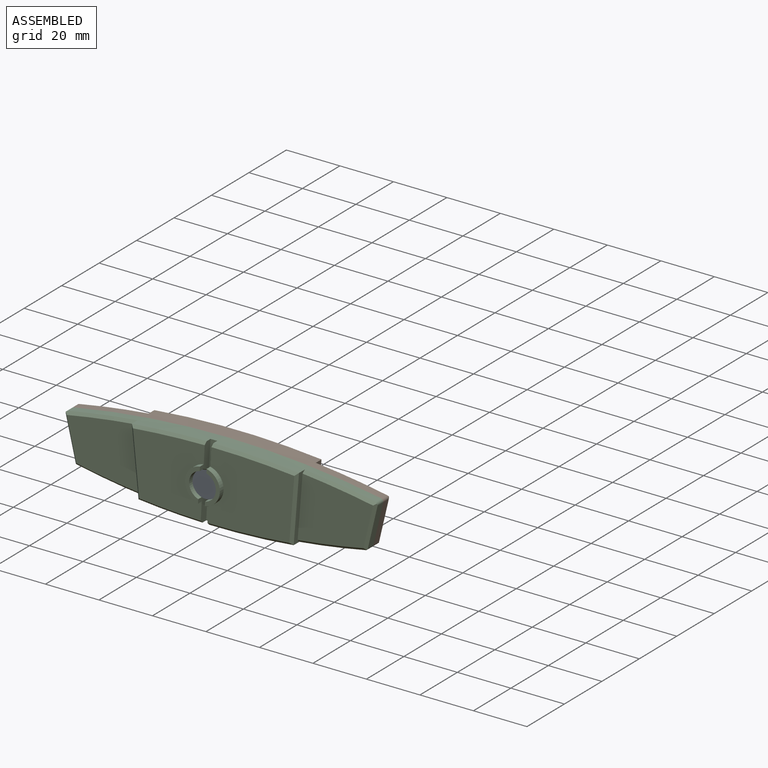
[diagram: assembled view]
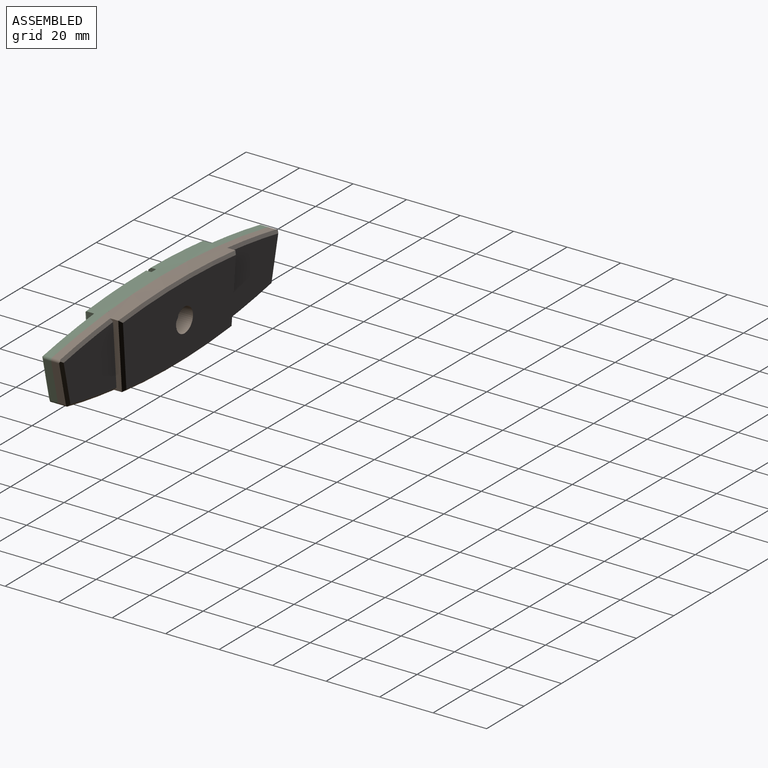
[diagram: assembled view, second angle]
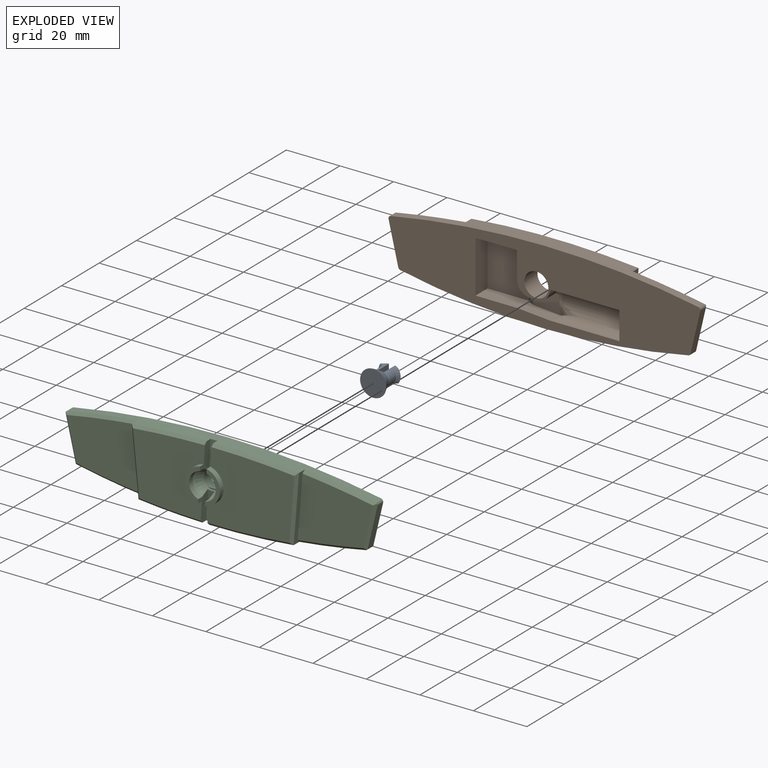
[diagram: exploded view]
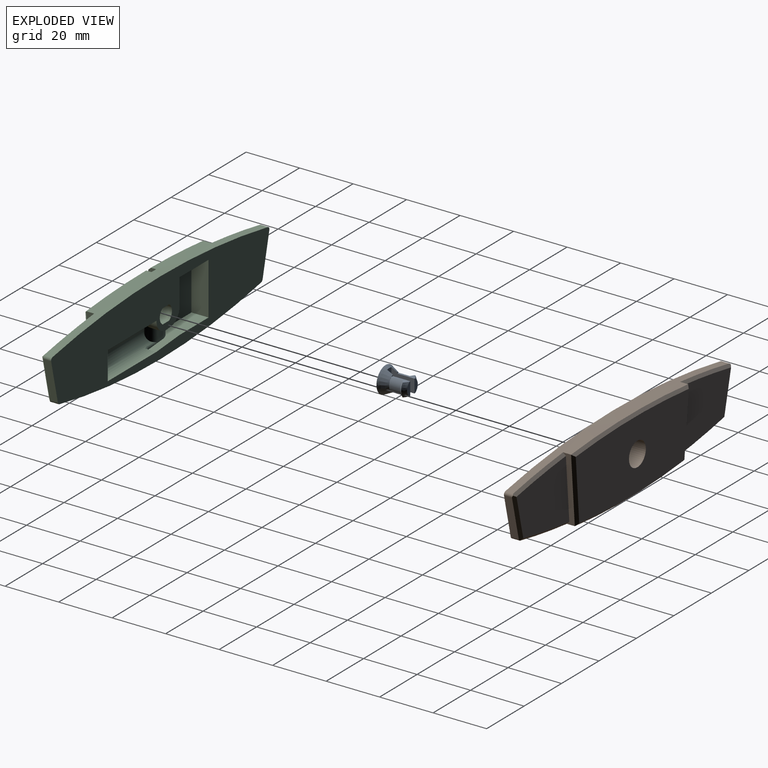
[diagram: exploded view, second angle]
ASSEMBLY  parts=3 mates=2
PART A: 19 faces, bbox 10x10x10.2 mm
  f0: plane 5x1.75mm, normal (0,0,-1), area 6.6mm2, adj f1,f2,f14,f17
  f1: plane 6.68x2.39mm, normal (0,1,0), area 6.6mm2, adj f0,f3,f7,f14,f15,f17
  f2: plane 6.68x2.39mm, normal (0,-1,0), area 6.6mm2, adj f0,f3,f7,f14,f15,f17
  f3: plane 5.94x2.05mm, normal (0,0,-1), area 0.6mm2, adj f1,f2,f7,f10,f17
  f4: plane 6.68x2.39mm, normal (0,1,0), area 6.6mm2, adj f5,f8,f11,f12,f13,f16
  f5: cylinder r=3.15mm len=5mm, axis (0,0,1), area 24.1mm2, adj f4,f6,f8,f13
  f6: plane 6.68x2.39mm, normal (0,-1,0), area 6.6mm2, adj f5,f8,f11,f12,f13,f16
  f7: cylinder r=3.15mm len=5mm, axis (0,0,1), area 24.1mm2, adj f1,f2,f3,f15
  f8: plane 5.94x2.05mm, normal (0,0,-1), area 0.6mm2, adj f4,f5,f6,f10,f16
  f9: plane 9.8x9.8mm, normal (0,0,1), area 75.4mm2, adj f10
  f10: cone r=4.92mm half-angle=26.2deg, axis (0,0,1), area 87.9mm2, adj f3,f8,f9,f16,f17,f18
  f11: plane 5x1.75mm, normal (0,0,-1), area 6.6mm2, adj f4,f6,f12,f16
  f12: cone r=2.88mm half-angle=45deg, axis (0,0,1), area 10.3mm2, adj f4,f6,f11,f13
  f13: cone r=4.17mm half-angle=45deg, axis (0,0,-1), area 8.2mm2, adj f4,f5,f6,f12
  f14: cone r=2.88mm half-angle=45deg, axis (0,0,1), area 10.3mm2, adj f0,f1,f2,f15
  f15: cone r=4.17mm half-angle=45deg, axis (0,0,-1), area 8.2mm2, adj f1,f2,f7,f14
  f16: plane 8.7x8.22mm, normal (1,0,0), area 47.7mm2, adj f4,f6,f8,f10,f11,f18
  f17: plane 8.7x8.22mm, normal (-1,0,0), area 47.7mm2, adj f0,f1,f2,f3,f10,f18
  f18: plane 8.47x2.25mm, normal (0,0,-1), area 18.8mm2, adj f10,f16,f17
PART B: 44 faces, bbox 116.7x9.6x28.1 mm
  f0: plane 0.83x0.07mm, normal (1,0,0), area 0mm2, adj f5,f19,f43
  f1: cylinder r=272.77mm len=107.74mm, axis (0,-1,0), area 499.7mm2, adj f5,f6,f9,f11,f14,f17,f21,f31
  f2: plane 15.36x3.61mm, normal (0.97,0,-0.23), area 47.3mm2, adj f5,f7,f9,f10
  f3: cylinder r=313.86mm len=114.94mm, axis (0,-1,0), area 534.6mm2, adj f5,f8,f10,f11,f16,f18,f21,f30
  f4: plane 28.19x22.91mm, normal (0,1,0), area 497mm2, adj f6,f7,f8,f11
  f5: plane 116.57x28mm, normal (0,-1,0), area 2039.2mm2, adj f0,f1,f2,f3,f9,f10,f12,f17
  f6: cone r=271.77mm half-angle=45deg, axis (0,-1,0), area 35.8mm2, adj f1,f4,f7,f9,f11
  f7: plane 16.77x4.76mm, normal (0.69,0.71,-0.16), area 23.3mm2, adj f2,f4,f6,f8,f9,f10
  f8: cone r=312.86mm half-angle=45deg, axis (0,-1,0), area 38.3mm2, adj f3,f4,f7,f10,f11
  f9: cylinder r=1mm len=3.16mm, axis (0,-1,0), area 3.5mm2, adj f1,f2,f5,f6,f7
  f10: cylinder r=1mm len=3.31mm, axis (0,-1,0), area 5.1mm2, adj f2,f3,f5,f7,f8
  f11: plane 24.92x3mm, normal (1,0,-0.08), area 51mm2, adj f1,f3,f4,f6,f8,f32
  f12: plane 15.36x3.61mm, normal (-0.97,0,-0.23), area 47.3mm2, adj f5,f15,f17,f18
  f13: plane 28.2x22.86mm, normal (0,1,0), area 491.6mm2, adj f14,f15,f16,f21
  f14: cone r=271.77mm half-angle=45deg, axis (0,-1,0), area 35.8mm2, adj f1,f13,f15,f17,f21
  f15: plane 16.77x4.76mm, normal (-0.69,0.71,-0.16), area 23.3mm2, adj f12,f13,f14,f16,f17,f18
  f16: cone r=312.86mm half-angle=45deg, axis (0,-1,0), area 37.6mm2, adj f3,f13,f15,f18,f21
  f17: cylinder r=1mm len=3.16mm, axis (0,-1,0), area 3.5mm2, adj f1,f5,f12,f14,f15
  f18: cylinder r=1mm len=3.31mm, axis (0,-1,0), area 5.1mm2, adj f3,f5,f12,f15,f16
  f19: cylinder r=5.25mm len=27.51mm, axis (-1,0,0), area 402.8mm2, adj f0,f5,f20,f28,f33,f39,f40,f43
  f20: plane 3.85x0.25mm, normal (1,0,0), area 0.6mm2, adj f19,f33,f40
  f21: plane 24.87x3mm, normal (-0.99,0,-0.1), area 51mm2, adj f1,f3,f13,f14,f16,f29
  f22: plane 60.33x26mm, normal (0,1,0), area 1394.2mm2, adj f29,f30,f31,f32,f38
  f23: plane 19.5x15.5mm, normal (0,-1,0), area 302.2mm2, adj f24,f25,f26,f27,f41
  f24: plane 15.5x6.4mm, normal (0,0,1), area 99.2mm2, adj f5,f23,f25,f35
  f25: plane 19.5x6.4mm, normal (1,0,0), area 124.8mm2, adj f5,f23,f24,f26
  f26: plane 15.5x6.4mm, normal (0,0,-1), area 99.2mm2, adj f5,f23,f25,f27
  f27: plane 9.87x6.4mm, normal (-1,0,0), area 63.2mm2, adj f5,f23,f26,f42
  f28: plane 10.5x5.25mm, normal (-1,0,0), area 43.3mm2, adj f5,f19
  f29: plane 24.87x3.42mm, normal (-0.7,0.71,-0.07), area 34.1mm2, adj f21,f22,f30,f31
  f30: cone r=312.86mm half-angle=45deg, axis (0,-1,0), area 87mm2, adj f3,f22,f29,f32
  f31: cone r=271.77mm half-angle=45deg, axis (0,-1,0), area 80.9mm2, adj f1,f22,f29,f32
  f32: plane 24.92x2.92mm, normal (0.7,0.71,-0.06), area 34.1mm2, adj f11,f22,f30,f31
  f33: plane 8.83x6.85mm, normal (0,-1,0), area 49.1mm2, adj f19,f20,f34,f35,f37,f41,f42,f43
  f34: plane 5x2.3mm, normal (-0.08,0,-1), area 11.5mm2, adj f5,f33,f42,f43
  f35: plane 12.32x6.42mm, normal (0.08,0,1), area 63.2mm2, adj f5,f24,f33,f36,f41
  f36: cone r=2.95mm half-angle=36.1deg, axis (0,0.81,0.59), area 2.9mm2, adj f35,f37,f39
  f37: cone r=2.95mm half-angle=53.9deg, axis (0,-0.81,-0.59), area 2.6mm2, adj f33,f36,f39,f40
  f38: cylinder r=4.5mm len=9mm, axis (0,-1,0), area 197.9mm2, adj f5,f22
  f39: bspline ~9.43x9.17mm, area 14.6mm2, adj f19,f36,f37,f40
  f40: bspline ~9.12x7.2mm, area 13.3mm2, adj f19,f20,f37,f39
  f41: cylinder r=5mm len=9.91mm, axis (0,0,-1), area 28.3mm2, adj f23,f33,f35,f42
  f42: cylinder r=5mm len=6.4mm, axis (0,1,0), area 41.7mm2, adj f5,f27,f33,f34,f41
  f43: cylinder r=5mm len=5.4mm, axis (0,1,0), area 36.5mm2, adj f0,f5,f19,f33,f34
PART C: 69 faces, bbox 116.7x9.1x28.1 mm
  f0: cylinder r=272.77mm len=107.74mm, axis (0,1,0), area 494.7mm2, adj f4,f5,f8,f12,f15,f17,f26,f36
  f1: plane 15.36x3.61mm, normal (0.97,0,-0.23), area 47.3mm2, adj f4,f6,f8,f9
  f2: cylinder r=313.86mm len=114.94mm, axis (0,1,0), area 529.6mm2, adj f4,f7,f9,f14,f16,f17,f26,f39
  f3: plane 28.19x22.91mm, normal (0,-1,0), area 497mm2, adj f5,f6,f7,f26
  f4: plane 116.57x28mm, normal (0,1,0), area 2071.9mm2, adj f0,f1,f2,f8,f9,f10,f15,f16
  f5: cone r=271.77mm half-angle=45deg, axis (0,1,0), area 35.8mm2, adj f0,f3,f6,f8,f26
  f6: plane 16.77x4.76mm, normal (0.69,-0.71,-0.16), area 23.3mm2, adj f1,f3,f5,f7,f8,f9
  f7: cone r=312.86mm half-angle=45deg, axis (0,1,0), area 38.3mm2, adj f2,f3,f6,f9,f26
  f8: cylinder r=1mm len=3.16mm, axis (0,1,0), area 3.5mm2, adj f0,f1,f4,f5,f6
  f9: cylinder r=1mm len=3.31mm, axis (0,1,0), area 5.1mm2, adj f1,f2,f4,f6,f7
  f10: plane 15.36x3.61mm, normal (-0.97,0,-0.23), area 47.3mm2, adj f4,f13,f15,f16
  f11: plane 28.2x22.86mm, normal (0,-1,0), area 491.6mm2, adj f12,f13,f14,f17
  f12: cone r=271.77mm half-angle=45deg, axis (0,1,0), area 35.8mm2, adj f0,f11,f13,f15,f17
  f13: plane 16.77x4.76mm, normal (-0.69,-0.71,-0.16), area 23.3mm2, adj f10,f11,f12,f14,f15,f16
  f14: cone r=312.86mm half-angle=45deg, axis (0,1,0), area 37.6mm2, adj f2,f11,f13,f16,f17
  f15: cylinder r=1mm len=3.16mm, axis (0,1,0), area 3.5mm2, adj f0,f4,f10,f12,f13
  f16: cylinder r=1mm len=3.31mm, axis (0,1,0), area 5.1mm2, adj f2,f4,f10,f13,f14
  f17: plane 24.87x3mm, normal (-0.99,0,-0.1), area 51mm2, adj f0,f2,f11,f12,f14,f55
  f18: cylinder r=5.25mm len=29.14mm, axis (-1,0,0), area 401.1mm2, adj f4,f19,f47,f48,f49,f62,f64,f65
  f19: plane 0.83x0.07mm, normal (1,0,0), area 0mm2, adj f4,f18,f67
  f20: plane 32.47x26mm, normal (0,-1,0), area 722.1mm2, adj f23,f37,f40,f51,f52,f53
  f21: cone r=5mm half-angle=26.6deg, axis (0,-1,0), area 84mm2, adj f22,f25,f28,f29,f32,f33,f36,f37
  f22: cylinder r=5mm len=9.69mm, axis (0,1,0), area 26.6mm2, adj f21,f24,f37,f40
  f23: cylinder r=6.5mm len=12.76mm, axis (0,1,0), area 36mm2, adj f20,f24,f37,f40
  f24: plane 12.76x5.66mm, normal (0,-1,0), area 23.5mm2, adj f22,f23,f37,f40
  f25: plane 3.46x0.5mm, normal (0,-1,0), area 1.2mm2, adj f21,f31
  f26: plane 24.92x3mm, normal (1,0,-0.08), area 51mm2, adj f0,f2,f3,f5,f7,f53
  f27: plane 26.84x25.93mm, normal (0,-1,0), area 570.3mm2, adj f34,f36,f41,f54,f55,f56
  f28: plane 3.46x0.5mm, normal (0,-1,0), area 1.2mm2, adj f21,f30
  f29: cylinder r=3.25mm len=5.5mm, axis (0,-1,0), area 22.9mm2, adj f4,f21,f30,f31
  f30: plane 3.5x3.46mm, normal (0,0,-1), area 12.1mm2, adj f4,f28,f29,f32
  f31: plane 3.5x3.46mm, normal (0,0,1), area 12.1mm2, adj f4,f25,f29,f32
  f32: cylinder r=3.25mm len=5.5mm, axis (0,-1,0), area 22.9mm2, adj f4,f21,f30,f31
  f33: cylinder r=5mm len=9.64mm, axis (0,1,0), area 26.2mm2, adj f21,f35,f36,f41
  f34: cylinder r=6.5mm len=12.72mm, axis (0,1,0), area 35.6mm2, adj f27,f35,f36,f41
  f35: plane 12.72x5.57mm, normal (0,-1,0), area 23.2mm2, adj f33,f34,f36,f41
  f36: plane 10.87x5.09mm, normal (1,0,-0.06), area 32.6mm2, adj f0,f21,f27,f33,f34,f35,f38,f54
  f37: plane 10.72x5.08mm, normal (-1,0,0.06), area 32.2mm2, adj f0,f20,f21,f22,f23,f24,f38,f52
  f38: plane 10.82x3.12mm, normal (0,-1,0), area 26.4mm2, adj f0,f21,f36,f37
  f39: plane 10.79x3.12mm, normal (0,-1,0), area 26.5mm2, adj f2,f21,f40,f41
  f40: plane 10.87x5.08mm, normal (-1,0,0.06), area 32.6mm2, adj f2,f20,f21,f22,f23,f24,f39,f51
  f41: plane 10.75x5.09mm, normal (1,0,-0.06), area 32.2mm2, adj f2,f21,f27,f33,f34,f35,f39,f56
  f42: plane 19.5x15.5mm, normal (0,1,0), area 302.2mm2, adj f43,f44,f45,f46,f63
  f43: plane 15.5x6.4mm, normal (0,0,1), area 99.2mm2, adj f4,f42,f44,f58
  f44: plane 19.5x6.4mm, normal (1,0,0), area 124.8mm2, adj f4,f42,f43,f45
  f45: plane 15.5x6.4mm, normal (0,0,-1), area 99.2mm2, adj f4,f42,f44,f46
  f46: plane 9.87x6.4mm, normal (-1,0,0), area 63.2mm2, adj f4,f42,f45,f68
  f47: plane 10.5x5.25mm, normal (-1,0,0), area 43.3mm2, adj f4,f18
  f48: plane 4.95x1.3mm, normal (0,0,1), area 4.5mm2, adj f18,f49
  f49: cylinder r=3mm len=13.97mm, axis (0,0,-1), area 222.6mm2, adj f18,f48,f50
  f50: sphere r=3mm, area 56.5mm2, adj f49
  f51: cone r=312.86mm half-angle=45deg, axis (0,1,0), area 44.6mm2, adj f2,f20,f40,f53
  f52: cone r=271.77mm half-angle=45deg, axis (0,1,0), area 44.1mm2, adj f0,f20,f37,f53
  f53: plane 24.92x2.92mm, normal (0.7,-0.71,-0.06), area 34.1mm2, adj f20,f26,f51,f52
  f54: cone r=271.77mm half-angle=45deg, axis (0,1,0), area 33.3mm2, adj f0,f27,f36,f55
  f55: plane 24.87x3.42mm, normal (-0.7,-0.71,-0.07), area 34.1mm2, adj f17,f27,f54,f56
  f56: cone r=312.86mm half-angle=45deg, axis (0,1,0), area 38.8mm2, adj f2,f27,f41,f55
  f57: plane 3x2.3mm, normal (-0.08,0,-1), area 6.9mm2, adj f4,f59,f63,f67,f68
  f58: plane 12.39x6.49mm, normal (0.08,0,1), area 41.4mm2, adj f4,f43,f59,f61,f63
  f59: plane 7.56x5.62mm, normal (0,1,0), area 14.1mm2, adj f57,f58,f60,f62,f63,f64,f67
  f60: cone r=0.9mm half-angle=72.6deg, axis (0,0.95,-0.3), area 0.1mm2, adj f59,f61,f65
  f61: cone r=0.9mm half-angle=17.4deg, axis (0,-0.95,0.3), area 0.9mm2, adj f58,f60,f65,f66
  f62: cylinder r=5mm len=6.83mm, axis (0,0,1), area 23.1mm2, adj f18,f59,f64,f67
  f63: cylinder r=5mm len=10.01mm, axis (0,0,1), area 39.2mm2, adj f42,f57,f58,f59,f68
  f64: cylinder r=1mm len=5mm, axis (-1,0,0), area 3.6mm2, adj f18,f59,f62,f65
  f65: bspline ~2.83x1.33mm, area 1.2mm2, adj f18,f60,f61,f64,f66
  f66: bspline ~4.68x2.41mm, area 1.2mm2, adj f18,f61,f65
  f67: cylinder r=5mm len=5.4mm, axis (0,-1,0), area 29.7mm2, adj f4,f18,f19,f57,f59,f62
  f68: cylinder r=5mm len=6.4mm, axis (0,-1,0), area 35mm2, adj f4,f46,f57,f63
PLACE A rot(axis=(1,0,0),90deg) t=(-1.79,-20.52,-0.88)mm
PLACE B t=(1.21,-13.18,-0.88)mm
PLACE C t=(1.21,-13.18,-0.88)mm
MATE fastened B.f5 <-> C.f4  axis (0,-1,0) through (-24.56,-13.18,8.87)mm
MATE fastened A.f7 <-> C.f32  axis (0,-1,0) through (-1.79,-14.93,-0.88)mm
